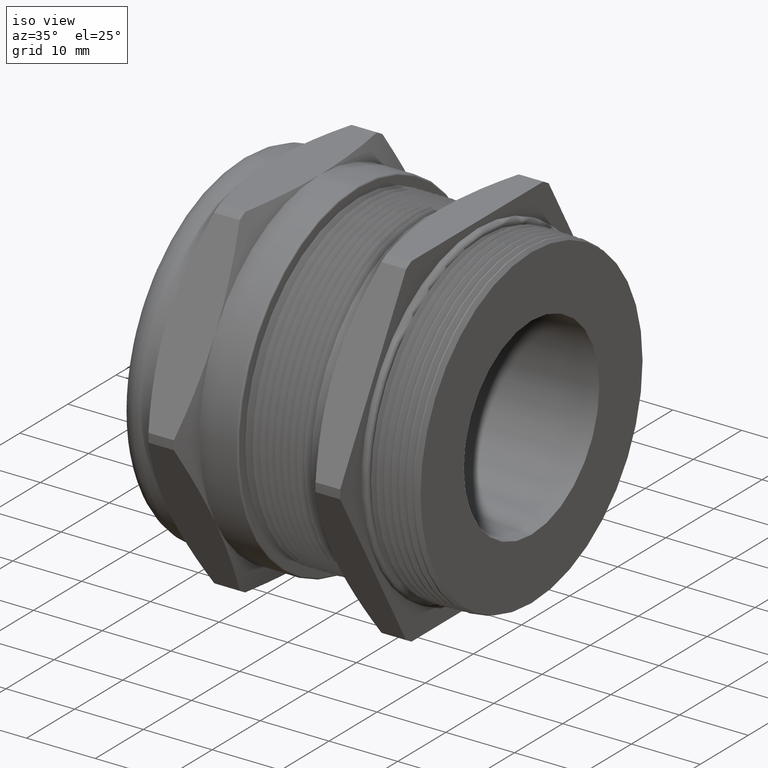
[diagram: clean part render]
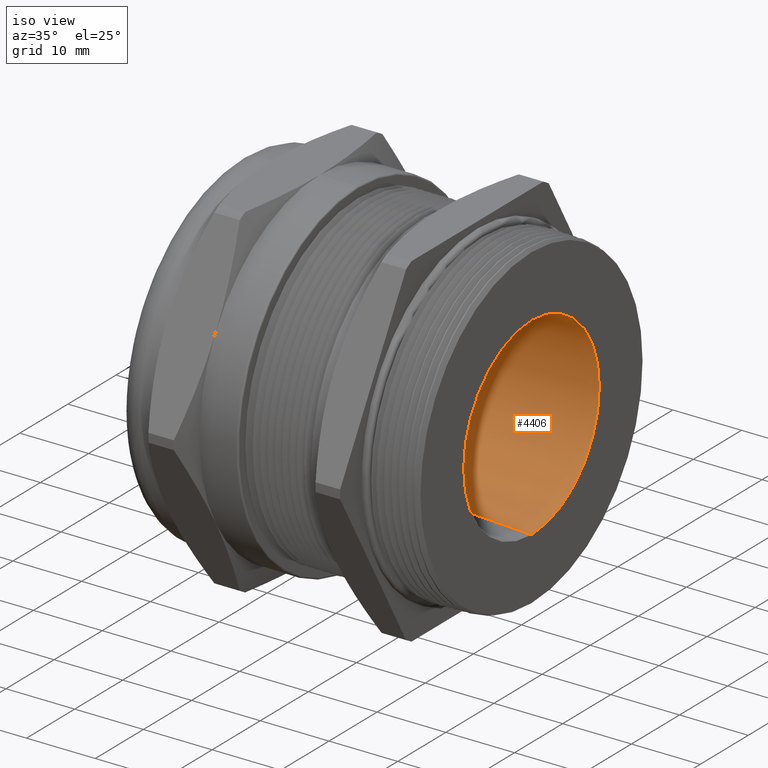
[diagram: same view with one face highlighted and labeled with its STEP entity id]
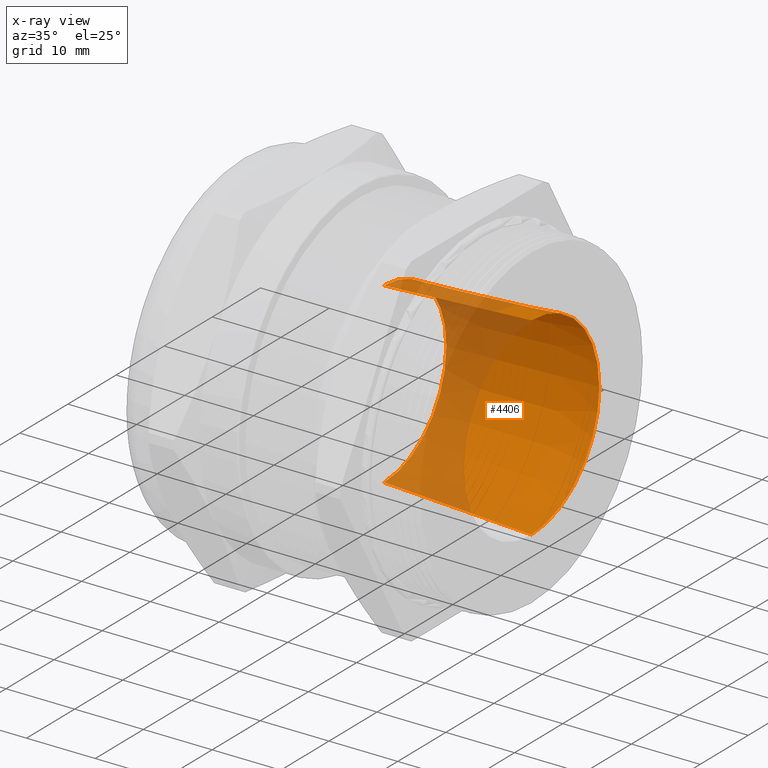
[diagram: x-ray of the same camera — body ghosted, the highlighted face saturated]
A machine part, iso view. The second image highlights one B-rep face of the part: STEP entity #4406.
The next image is the same camera in x-ray: the body ghosted, the highlighted face saturated — about 35% of this face is hidden behind the body in this view.
In plain terms, the highlighted conical surface has half-angle 3 deg.
Its self-contained STEP definition (entity closure, byte-faithful):
#486 = DIRECTION ( 'NONE',  ( 0.9986295347545738300, 6.409306129323774100E-018, 0.05233595624294436200 ) ) ;
#487 = VECTOR ( 'NONE', #486, 39.37007874015748900 ) ;
#488 = CARTESIAN_POINT ( 'NONE',  ( 0.0000000000000000000, 6.245698675651502300E-017, 0.5100000000000000100 ) ) ;
#489 = LINE ( 'NONE', #488, #487 ) ;
#536 = CARTESIAN_POINT ( 'NONE',  ( 0.8449999999999998600, 6.788028287463914400E-017, 0.5542845734941702600 ) ) ;
#543 = DIRECTION ( 'NONE',  ( 0.9986295347545738300, 0.0000000000000000000, -0.05233595624294436200 ) ) ;
#544 = VECTOR ( 'NONE', #543, 39.37007874015748900 ) ;
#545 = CARTESIAN_POINT ( 'NONE',  ( 0.0000000000000000000, 0.0000000000000000000, -0.5100000000000000100 ) ) ;
#546 = LINE ( 'NONE', #545, #544 ) ;
#547 = CARTESIAN_POINT ( 'NONE',  ( 0.8449999999999998600, 0.0000000000000000000, -0.5542845734941702600 ) ) ;
#1112 = CARTESIAN_POINT ( 'NONE',  ( 0.0000000000000000000, 6.516863481557708400E-017, 0.5100000000000000100 ) ) ;
#1113 = CARTESIAN_POINT ( 'NONE',  ( 0.0000000000000000000, 0.0000000000000000000, -0.5100000000000000100 ) ) ;
#2127 = DIRECTION ( 'NONE',  ( 0.0000000000000000000, 0.0000000000000000000, 1.000000000000000000 ) ) ;
#2128 = DIRECTION ( 'NONE',  ( -1.000000000000000000, 0.0000000000000000000, 0.0000000000000000000 ) ) ;
#2129 = CARTESIAN_POINT ( 'NONE',  ( 0.8449999999999998600, 0.0000000000000000000, 0.0000000000000000000 ) ) ;
#2130 = AXIS2_PLACEMENT_3D ( 'NONE', #2129, #2128, #2127 ) ;
#2131 = CIRCLE ( 'NONE', #2130, 0.5542845734941702600 ) ;
#2546 = DIRECTION ( 'NONE',  ( 0.0000000000000000000, 0.0000000000000000000, -1.000000000000000000 ) ) ;
#2547 = DIRECTION ( 'NONE',  ( 1.000000000000000000, 0.0000000000000000000, 0.0000000000000000000 ) ) ;
#2548 = CARTESIAN_POINT ( 'NONE',  ( 0.0000000000000000000, 0.0000000000000000000, 0.0000000000000000000 ) ) ;
#2549 = AXIS2_PLACEMENT_3D ( 'NONE', #2548, #2547, #2546 ) ;
#2551 = CONICAL_SURFACE ( 'NONE', #2549, 0.5100000000000000100, 0.05235987755983041000 ) ;
#2552 = FACE_OUTER_BOUND ( 'NONE', #4396, .T. ) ;
#2585 = DIRECTION ( 'NONE',  ( 0.0000000000000000000, 0.0000000000000000000, 1.000000000000000000 ) ) ;
#2586 = DIRECTION ( 'NONE',  ( -1.000000000000000000, 0.0000000000000000000, 0.0000000000000000000 ) ) ;
#2587 = AXIS2_PLACEMENT_3D ( 'NONE', #2593, #2586, #2585 ) ;
#2588 = CIRCLE ( 'NONE', #2587, 0.5100000000000000100 ) ;
#2593 = CARTESIAN_POINT ( 'NONE',  ( 0.0000000000000000000, 0.0000000000000000000, 0.0000000000000000000 ) ) ;
#3021 = EDGE_CURVE ( 'NONE', #3324, #3029, #489, .T. ) ;
#3024 = VERTEX_POINT ( 'NONE', #547 ) ;
#3026 = EDGE_CURVE ( 'NONE', #3323, #3024, #546, .T. ) ;
#3029 = VERTEX_POINT ( 'NONE', #536 ) ;
#3323 = VERTEX_POINT ( 'NONE', #1113 ) ;
#3324 = VERTEX_POINT ( 'NONE', #1112 ) ;
#4179 = EDGE_CURVE ( 'NONE', #3029, #3024, #2131, .T. ) ;
#4394 = ORIENTED_EDGE ( 'NONE', *, *, #3021, .F. ) ;
#4396 = EDGE_LOOP ( 'NONE', ( #4394, #4424, #4422, #4418 ) ) ;
#4406 = ADVANCED_FACE ( 'NONE', ( #2552 ), #2551, .F. ) ;
#4418 = ORIENTED_EDGE ( 'NONE', *, *, #4179, .F. ) ;
#4420 = EDGE_CURVE ( 'NONE', #3324, #3323, #2588, .T. ) ;
#4422 = ORIENTED_EDGE ( 'NONE', *, *, #3026, .T. ) ;
#4424 = ORIENTED_EDGE ( 'NONE', *, *, #4420, .T. ) ;